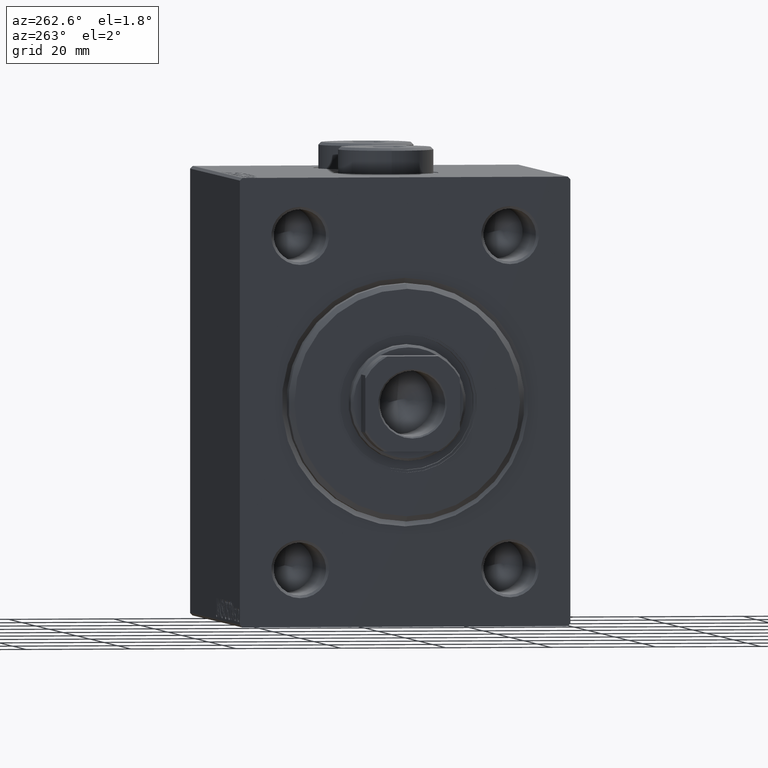
[diagram: clean part render]
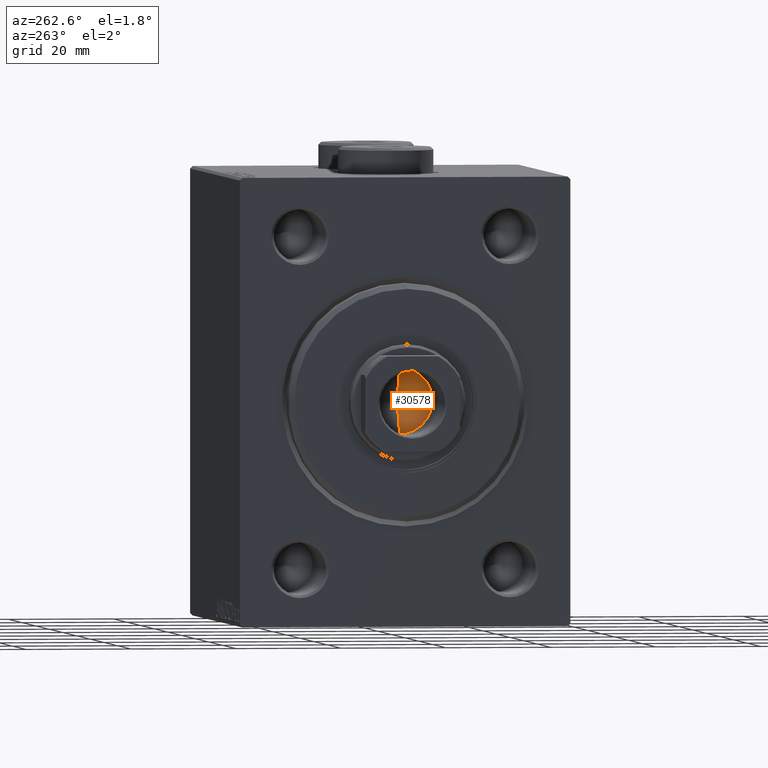
[diagram: same view with one face highlighted and labeled with its STEP entity id]
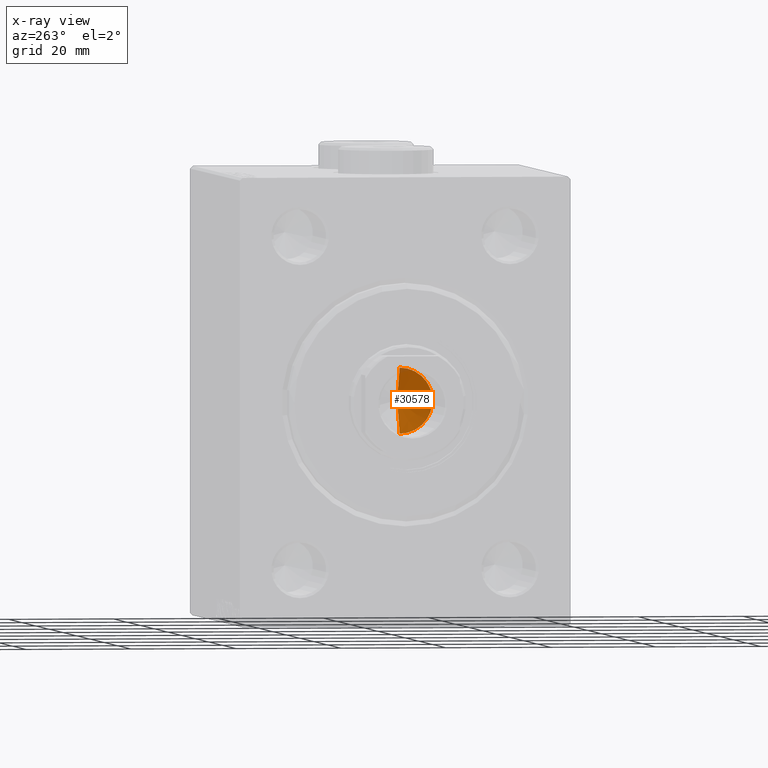
[diagram: x-ray of the same camera — body ghosted, the highlighted face saturated]
A machine part, auxiliary view. The second image highlights one B-rep face of the part: STEP entity #30578.
The next image is the same camera in x-ray: the body ghosted, the highlighted face saturated — about 2% of this face is hidden behind the body in this view.
In plain terms, the highlighted conical surface has half-angle 59 deg.
Its self-contained STEP definition (entity closure, byte-faithful):
#1919 = LINE ( 'NONE', #44176, #17014 ) ;
#8582 = ORIENTED_EDGE ( 'NONE', *, *, #24922, .T. ) ;
#8976 = DIRECTION ( 'NONE',  ( -0.000000000000000000, -0.000000000000000000, 1.000000000000000000 ) ) ;
#9052 = EDGE_LOOP ( 'NONE', ( #27424, #8582, #17000 ) ) ;
#12961 = CONICAL_SURFACE ( 'NONE', #23848, 6.249999999999995559, 1.029744258676653201 ) ;
#14924 = CARTESIAN_POINT ( 'NONE',  ( 0.000000000000000000, 0.000000000000000000, 43.00000000000000000 ) ) ;
#15334 = DIRECTION ( 'NONE',  ( 0.8571673007021116675, 0.000000000000000000, 0.5150380749100552658 ) ) ;
#17000 = ORIENTED_EDGE ( 'NONE', *, *, #40067, .T. ) ;
#17014 = VECTOR ( 'NONE', #43948, 1000.000000000000000 ) ;
#19252 = LINE ( 'NONE', #25939, #36713 ) ;
#19391 = VERTEX_POINT ( 'NONE', #41150 ) ;
#19543 = DIRECTION ( 'NONE',  ( 1.000000000000000000, 0.000000000000000000, 0.000000000000000000 ) ) ;
#20556 = EDGE_CURVE ( 'NONE', #23197, #19391, #19252, .T. ) ;
#23197 = VERTEX_POINT ( 'NONE', #38840 ) ;
#23848 = AXIS2_PLACEMENT_3D ( 'NONE', #37901, #8976, #19543 ) ;
#23895 = FACE_OUTER_BOUND ( 'NONE', #9052, .T. ) ;
#24922 = EDGE_CURVE ( 'NONE', #23197, #27705, #1919, .T. ) ;
#25939 = CARTESIAN_POINT ( 'NONE',  ( 6.249999999999995559, 0.000000000000000000, 43.00000000000000000 ) ) ;
#27424 = ORIENTED_EDGE ( 'NONE', *, *, #20556, .F. ) ;
#27705 = VERTEX_POINT ( 'NONE', #43204 ) ;
#30578 = ADVANCED_FACE ( 'NONE', ( #23895 ), #12961, .F. ) ;
#30975 = CIRCLE ( 'NONE', #39014, 6.249999999999995559 ) ;
#36536 = DIRECTION ( 'NONE',  ( 1.000000000000000000, 0.000000000000000000, 0.000000000000000000 ) ) ;
#36713 = VECTOR ( 'NONE', #15334, 1000.000000000000000 ) ;
#37901 = CARTESIAN_POINT ( 'NONE',  ( 0.000000000000000000, 0.000000000000000000, 43.00000000000000000 ) ) ;
#38840 = CARTESIAN_POINT ( 'NONE',  ( -5.058292539270947311E-15, 0.000000000000000000, 39.24462113107773575 ) ) ;
#39014 = AXIS2_PLACEMENT_3D ( 'NONE', #14924, #42728, #36536 ) ;
#40067 = EDGE_CURVE ( 'NONE', #27705, #19391, #30975, .T. ) ;
#41150 = CARTESIAN_POINT ( 'NONE',  ( 6.249999999999995559, 0.000000000000000000, 43.00000000000000000 ) ) ;
#42728 = DIRECTION ( 'NONE',  ( -0.000000000000000000, -0.000000000000000000, 1.000000000000000000 ) ) ;
#43204 = CARTESIAN_POINT ( 'NONE',  ( -6.249999999999995559, 7.654042494670950704E-16, 43.00000000000000000 ) ) ;
#43948 = DIRECTION ( 'NONE',  ( -0.8571673007021116675, 1.049727191138617833E-16, 0.5150380749100552658 ) ) ;
#44176 = CARTESIAN_POINT ( 'NONE',  ( -6.249999999999995559, 7.654042494670950704E-16, 43.00000000000000000 ) ) ;